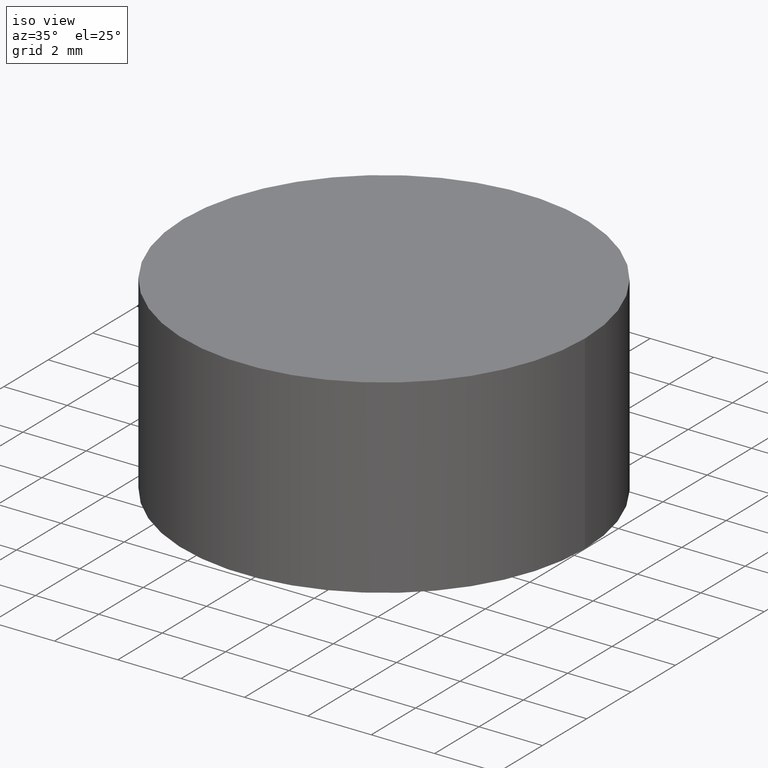
[diagram: clean part render]
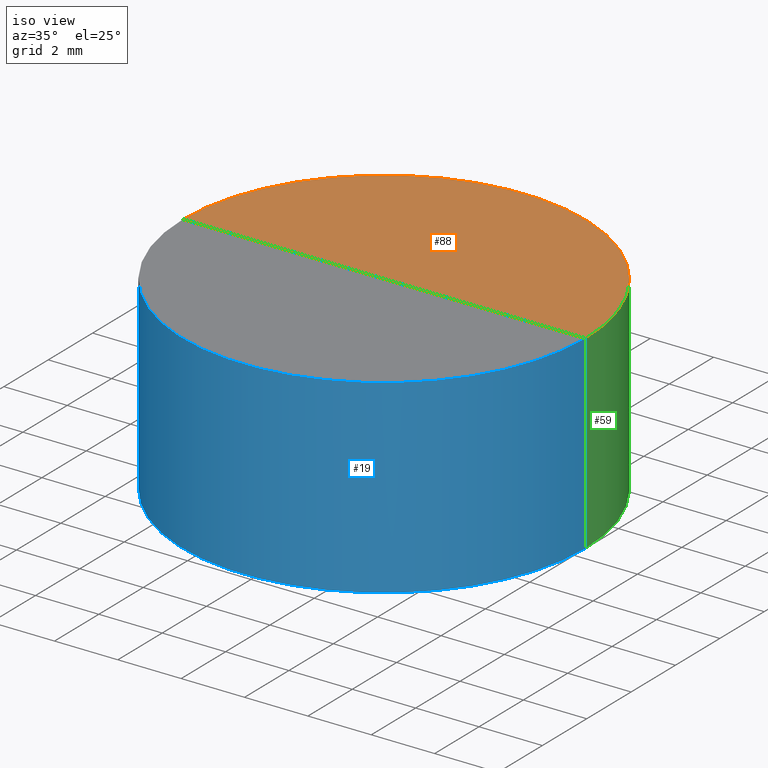
[diagram: same view with three faces highlighted in distinct colors, each labeled with its STEP entity id]
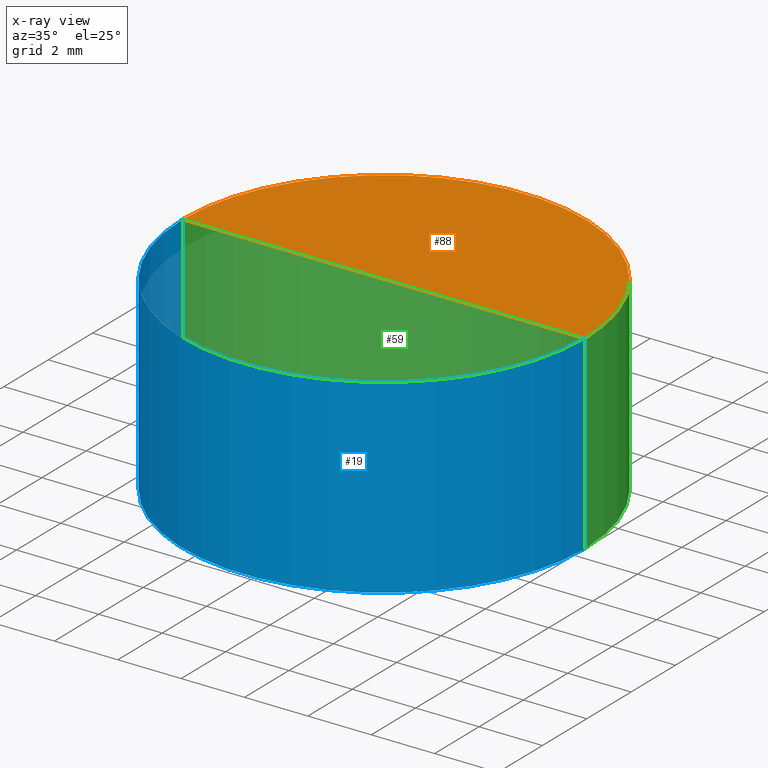
[diagram: x-ray of the same camera — body ghosted, the three highlighted faces saturated]
A machine part, iso view with three faces highlighted in distinct colors.
The next image is the same camera in x-ray (body ghosted, the three faces saturated) — at least one of them is partly hidden behind the body in this view.
Their STEP definitions:

[orange] entity #88 — the highlighted spherical surface has radius 4000 mm.
#2 = CARTESIAN_POINT ( 'NONE',  ( -6.349999999883296553, 0.000000000000000000, 5.999999999999783284 ) ) ;
#11 = CIRCLE ( 'NONE', #165, 4000.000000000000000 ) ;
#13 = ORIENTED_EDGE ( 'NONE', *, *, #95, .T. ) ;
#21 = CARTESIAN_POINT ( 'NONE',  ( 4.917941054394248113E-13, 0.000000000000000000, 4005.994959684324385 ) ) ;
#23 = DIRECTION ( 'NONE',  ( 1.000000000000000000, 0.000000000000000000, 0.000000000000000000 ) ) ;
#24 = CIRCLE ( 'NONE', #104, 6.349999999883787716 ) ;
#37 = CIRCLE ( 'NONE', #106, 4000.000000000000000 ) ;
#45 = CARTESIAN_POINT ( 'NONE',  ( 7.367234652688955115E-13, 0.000000000000000000, 5.994959684324285831 ) ) ;
#47 = ORIENTED_EDGE ( 'NONE', *, *, #180, .F. ) ;
#51 = DIRECTION ( 'NONE',  ( 0.000000000000000000, 1.000000000000000000, -0.000000000000000000 ) ) ;
#58 = ORIENTED_EDGE ( 'NONE', *, *, #131, .F. ) ;
#64 = DIRECTION ( 'NONE',  ( 0.000000000000000000, -1.000000000000000000, -0.000000000000000000 ) ) ;
#65 = DIRECTION ( 'NONE',  ( 1.000000000000000000, 1.224646799147353207E-16, 0.000000000000000000 ) ) ;
#83 = DIRECTION ( 'NONE',  ( -0.000000000000000000, -0.000000000000000000, -1.000000000000000000 ) ) ;
#88 = ADVANCED_FACE ( 'NONE', ( #199 ), #94, .F. ) ;
#89 = DIRECTION ( 'NONE',  ( 0.000000000000000000, 0.000000000000000000, 1.000000000000000000 ) ) ;
#94 = SPHERICAL_SURFACE ( 'NONE', #198, 4000.000000000000000 ) ;
#95 = EDGE_CURVE ( 'NONE', #116, #181, #11, .T. ) ;
#98 = CARTESIAN_POINT ( 'NONE',  ( 4.917941054394248113E-13, 0.000000000000000000, 5.999999999999783284 ) ) ;
#104 = AXIS2_PLACEMENT_3D ( 'NONE', #98, #83, #23 ) ;
#106 = AXIS2_PLACEMENT_3D ( 'NONE', #184, #51, #89 ) ;
#116 = VERTEX_POINT ( 'NONE', #2 ) ;
#121 = DIRECTION ( 'NONE',  ( 1.224646799147353207E-16, -1.000000000000000000, 0.000000000000000000 ) ) ;
#131 = EDGE_CURVE ( 'NONE', #178, #181, #37, .T. ) ;
#134 = EDGE_LOOP ( 'NONE', ( #47, #13, #58 ) ) ;
#165 = AXIS2_PLACEMENT_3D ( 'NONE', #186, #121, #65 ) ;
#171 = DIRECTION ( 'NONE',  ( 1.000000000000000000, 0.000000000000000000, 0.000000000000000000 ) ) ;
#178 = VERTEX_POINT ( 'NONE', #194 ) ;
#180 = EDGE_CURVE ( 'NONE', #116, #178, #24, .T. ) ;
#181 = VERTEX_POINT ( 'NONE', #45 ) ;
#184 = CARTESIAN_POINT ( 'NONE',  ( 4.917941054394248113E-13, 0.000000000000000000, 4005.994959684324385 ) ) ;
#186 = CARTESIAN_POINT ( 'NONE',  ( 4.917941054394248113E-13, 0.000000000000000000, 4005.994959684324385 ) ) ;
#194 = CARTESIAN_POINT ( 'NONE',  ( 6.349999999884279767, 7.776507174514834704E-16, 5.999999999999783284 ) ) ;
#198 = AXIS2_PLACEMENT_3D ( 'NONE', #21, #64, #171 ) ;
#199 = FACE_OUTER_BOUND ( 'NONE', #134, .T. ) ;

[blue] entity #19 — the highlighted cylindrical surface (partial cylindrical patch) has radius 6.35 mm, axis along (-0, -0, -1).
#2 = CARTESIAN_POINT ( 'NONE',  ( -6.349999999883296553, 0.000000000000000000, 5.999999999999783284 ) ) ;
#6 = CARTESIAN_POINT ( 'NONE',  ( 6.349999999999999645, 7.776507174585692163E-16, 6.000000000000000000 ) ) ;
#10 = EDGE_CURVE ( 'NONE', #116, #66, #35, .T. ) ;
#16 = DIRECTION ( 'NONE',  ( -0.000000000000000000, -0.000000000000000000, -1.000000000000000000 ) ) ;
#17 = CIRCLE ( 'NONE', #44, 6.349999999883787716 ) ;
#19 = ADVANCED_FACE ( 'NONE', ( #34 ), #33, .T. ) ;
#31 = VERTEX_POINT ( 'NONE', #126 ) ;
#33 = CYLINDRICAL_SURFACE ( 'NONE', #86, 6.349999999999999645 ) ;
#34 = FACE_OUTER_BOUND ( 'NONE', #197, .T. ) ;
#35 = LINE ( 'NONE', #90, #137 ) ;
#44 = AXIS2_PLACEMENT_3D ( 'NONE', #81, #114, #130 ) ;
#49 = ORIENTED_EDGE ( 'NONE', *, *, #182, .T. ) ;
#50 = LINE ( 'NONE', #6, #148 ) ;
#53 = DIRECTION ( 'NONE',  ( -0.000000000000000000, -0.000000000000000000, -1.000000000000000000 ) ) ;
#60 = CIRCLE ( 'NONE', #92, 6.349999999999999645 ) ;
#66 = VERTEX_POINT ( 'NONE', #168 ) ;
#67 = EDGE_CURVE ( 'NONE', #66, #31, #60, .T. ) ;
#73 = CARTESIAN_POINT ( 'NONE',  ( 0.000000000000000000, 0.000000000000000000, 0.000000000000000000 ) ) ;
#75 = CARTESIAN_POINT ( 'NONE',  ( 0.000000000000000000, 0.000000000000000000, 6.000000000000000000 ) ) ;
#78 = DIRECTION ( 'NONE',  ( -0.000000000000000000, -0.000000000000000000, -1.000000000000000000 ) ) ;
#81 = CARTESIAN_POINT ( 'NONE',  ( 4.917941054394248113E-13, 0.000000000000000000, 5.999999999999783284 ) ) ;
#86 = AXIS2_PLACEMENT_3D ( 'NONE', #75, #78, #124 ) ;
#90 = CARTESIAN_POINT ( 'NONE',  ( -6.349999999999999645, 0.000000000000000000, 6.000000000000000000 ) ) ;
#92 = AXIS2_PLACEMENT_3D ( 'NONE', #73, #135, #122 ) ;
#114 = DIRECTION ( 'NONE',  ( -0.000000000000000000, -0.000000000000000000, -1.000000000000000000 ) ) ;
#116 = VERTEX_POINT ( 'NONE', #2 ) ;
#122 = DIRECTION ( 'NONE',  ( 1.000000000000000000, 0.000000000000000000, 0.000000000000000000 ) ) ;
#124 = DIRECTION ( 'NONE',  ( -1.000000000000000000, 0.000000000000000000, 0.000000000000000000 ) ) ;
#126 = CARTESIAN_POINT ( 'NONE',  ( 6.349999999999999645, 7.776507174585692163E-16, 0.000000000000000000 ) ) ;
#130 = DIRECTION ( 'NONE',  ( 1.000000000000000000, 0.000000000000000000, 0.000000000000000000 ) ) ;
#135 = DIRECTION ( 'NONE',  ( 0.000000000000000000, 0.000000000000000000, 1.000000000000000000 ) ) ;
#137 = VECTOR ( 'NONE', #16, 1000.000000000000000 ) ;
#146 = EDGE_CURVE ( 'NONE', #178, #31, #50, .T. ) ;
#148 = VECTOR ( 'NONE', #53, 1000.000000000000000 ) ;
#164 = ORIENTED_EDGE ( 'NONE', *, *, #146, .F. ) ;
#168 = CARTESIAN_POINT ( 'NONE',  ( -6.349999999999999645, 0.000000000000000000, 0.000000000000000000 ) ) ;
#169 = ORIENTED_EDGE ( 'NONE', *, *, #67, .T. ) ;
#178 = VERTEX_POINT ( 'NONE', #194 ) ;
#179 = ORIENTED_EDGE ( 'NONE', *, *, #10, .T. ) ;
#182 = EDGE_CURVE ( 'NONE', #178, #116, #17, .T. ) ;
#194 = CARTESIAN_POINT ( 'NONE',  ( 6.349999999884279767, 7.776507174514834704E-16, 5.999999999999783284 ) ) ;
#197 = EDGE_LOOP ( 'NONE', ( #164, #49, #179, #169 ) ) ;

[green] entity #59 — the highlighted cylindrical surface (partial cylindrical patch) has radius 6.35 mm, axis along (-0, -0, -1).
#1 = CIRCLE ( 'NONE', #195, 6.349999999999999645 ) ;
#2 = CARTESIAN_POINT ( 'NONE',  ( -6.349999999883296553, 0.000000000000000000, 5.999999999999783284 ) ) ;
#3 = CARTESIAN_POINT ( 'NONE',  ( 0.000000000000000000, 0.000000000000000000, 6.000000000000000000 ) ) ;
#6 = CARTESIAN_POINT ( 'NONE',  ( 6.349999999999999645, 7.776507174585692163E-16, 6.000000000000000000 ) ) ;
#10 = EDGE_CURVE ( 'NONE', #116, #66, #35, .T. ) ;
#16 = DIRECTION ( 'NONE',  ( -0.000000000000000000, -0.000000000000000000, -1.000000000000000000 ) ) ;
#23 = DIRECTION ( 'NONE',  ( 1.000000000000000000, 0.000000000000000000, 0.000000000000000000 ) ) ;
#24 = CIRCLE ( 'NONE', #104, 6.349999999883787716 ) ;
#31 = VERTEX_POINT ( 'NONE', #126 ) ;
#35 = LINE ( 'NONE', #90, #137 ) ;
#40 = DIRECTION ( 'NONE',  ( 0.000000000000000000, 0.000000000000000000, 1.000000000000000000 ) ) ;
#50 = LINE ( 'NONE', #6, #148 ) ;
#53 = DIRECTION ( 'NONE',  ( -0.000000000000000000, -0.000000000000000000, -1.000000000000000000 ) ) ;
#55 = ORIENTED_EDGE ( 'NONE', *, *, #146, .T. ) ;
#59 = ADVANCED_FACE ( 'NONE', ( #87 ), #152, .T. ) ;
#63 = AXIS2_PLACEMENT_3D ( 'NONE', #3, #157, #123 ) ;
#66 = VERTEX_POINT ( 'NONE', #168 ) ;
#83 = DIRECTION ( 'NONE',  ( -0.000000000000000000, -0.000000000000000000, -1.000000000000000000 ) ) ;
#87 = FACE_OUTER_BOUND ( 'NONE', #196, .T. ) ;
#90 = CARTESIAN_POINT ( 'NONE',  ( -6.349999999999999645, 0.000000000000000000, 6.000000000000000000 ) ) ;
#98 = CARTESIAN_POINT ( 'NONE',  ( 4.917941054394248113E-13, 0.000000000000000000, 5.999999999999783284 ) ) ;
#104 = AXIS2_PLACEMENT_3D ( 'NONE', #98, #83, #23 ) ;
#105 = ORIENTED_EDGE ( 'NONE', *, *, #180, .T. ) ;
#110 = CARTESIAN_POINT ( 'NONE',  ( 0.000000000000000000, 0.000000000000000000, 0.000000000000000000 ) ) ;
#116 = VERTEX_POINT ( 'NONE', #2 ) ;
#123 = DIRECTION ( 'NONE',  ( -1.000000000000000000, 0.000000000000000000, 0.000000000000000000 ) ) ;
#126 = CARTESIAN_POINT ( 'NONE',  ( 6.349999999999999645, 7.776507174585692163E-16, 0.000000000000000000 ) ) ;
#137 = VECTOR ( 'NONE', #16, 1000.000000000000000 ) ;
#146 = EDGE_CURVE ( 'NONE', #178, #31, #50, .T. ) ;
#148 = VECTOR ( 'NONE', #53, 1000.000000000000000 ) ;
#151 = EDGE_CURVE ( 'NONE', #31, #66, #1, .T. ) ;
#152 = CYLINDRICAL_SURFACE ( 'NONE', #63, 6.349999999999999645 ) ;
#157 = DIRECTION ( 'NONE',  ( -0.000000000000000000, -0.000000000000000000, -1.000000000000000000 ) ) ;
#163 = ORIENTED_EDGE ( 'NONE', *, *, #10, .F. ) ;
#168 = CARTESIAN_POINT ( 'NONE',  ( -6.349999999999999645, 0.000000000000000000, 0.000000000000000000 ) ) ;
#178 = VERTEX_POINT ( 'NONE', #194 ) ;
#180 = EDGE_CURVE ( 'NONE', #116, #178, #24, .T. ) ;
#188 = ORIENTED_EDGE ( 'NONE', *, *, #151, .T. ) ;
#191 = DIRECTION ( 'NONE',  ( 1.000000000000000000, 0.000000000000000000, 0.000000000000000000 ) ) ;
#194 = CARTESIAN_POINT ( 'NONE',  ( 6.349999999884279767, 7.776507174514834704E-16, 5.999999999999783284 ) ) ;
#195 = AXIS2_PLACEMENT_3D ( 'NONE', #110, #40, #191 ) ;
#196 = EDGE_LOOP ( 'NONE', ( #105, #55, #188, #163 ) ) ;